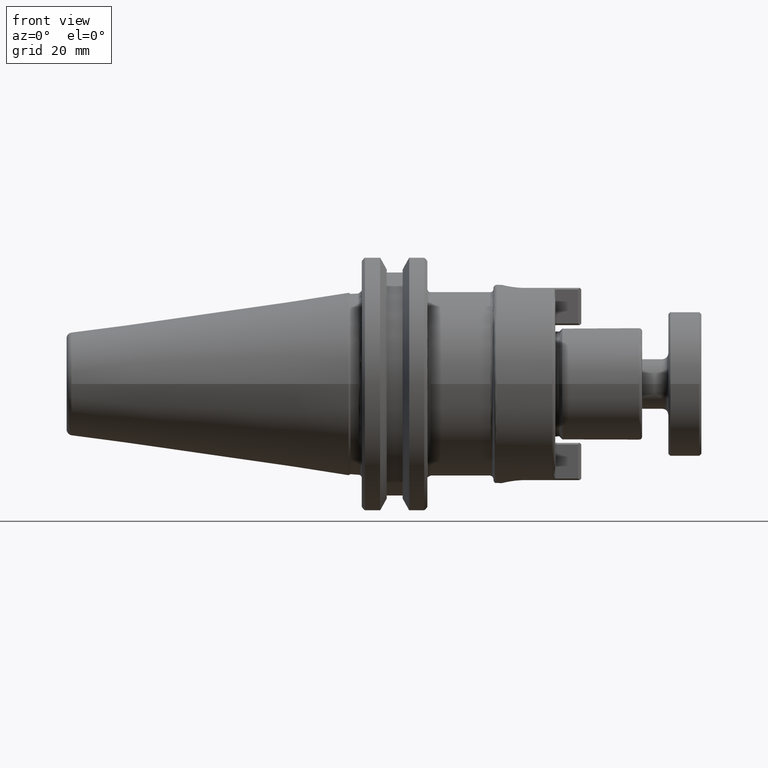
[diagram: clean part render]
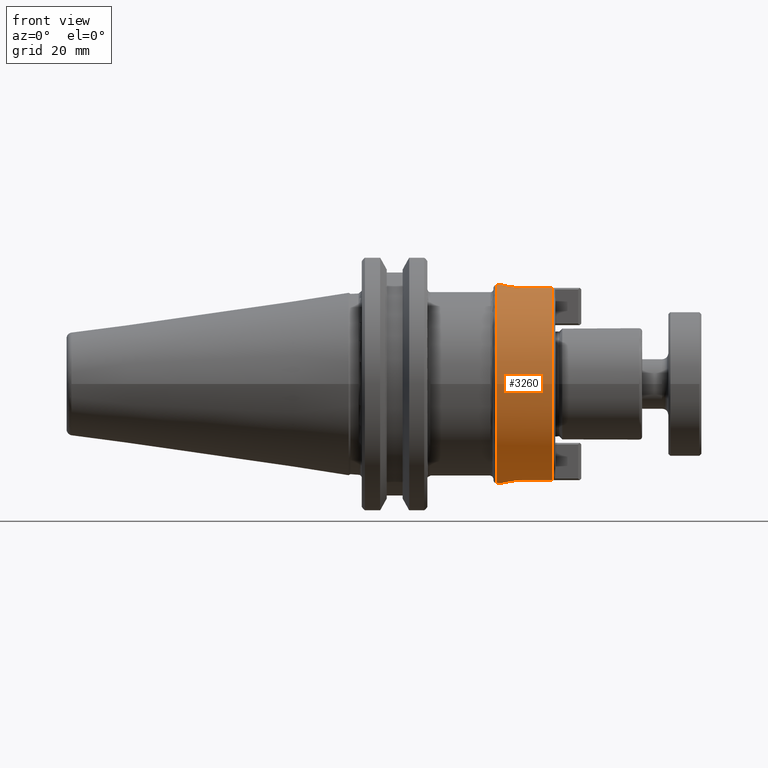
[diagram: same view with one face highlighted and labeled with its STEP entity id]
A machine part, front view. The second image highlights one B-rep face of the part: STEP entity #3260.
In plain terms, the highlighted cylindrical surface (bore or boss wall) has radius 24 mm, axis along (1, 0, 0).
Its self-contained STEP definition (entity closure, byte-faithful):
#123=B_SPLINE_CURVE_WITH_KNOTS('',3,(#5011,#5012,#5013,#5014,#5015,#5016,
#5017,#5018,#5019,#5020,#5021,#5022,#5023,#5024,#5025,#5026,#5027,#5028),
 .UNSPECIFIED.,.F.,.F.,(4,2,2,2,2,2,2,2,4),(0.,0.226854945168056,0.453709890336111,
0.680533238990156,0.9073565876442,1.13417993629825,1.36100328495229,1.58785823012035,
1.8147131752884),.UNSPECIFIED.);
#126=B_SPLINE_CURVE_WITH_KNOTS('',3,(#5095,#5096,#5097,#5098,#5099,#5100,
#5101,#5102,#5103,#5104,#5105,#5106,#5107,#5108,#5109,#5110,#5111,#5112),
 .UNSPECIFIED.,.F.,.F.,(4,2,2,2,2,2,2,2,4),(0.,0.226854945168056,0.453709890336111,
0.680533238990156,0.9073565876442,1.13417993629825,1.36100328495229,1.58785823012035,
1.8147131752884),.UNSPECIFIED.);
#288=CYLINDRICAL_SURFACE('',#3612,0.94488188976378);
#470=FACE_OUTER_BOUND('',#656,.T.);
#656=EDGE_LOOP('',(#2386,#2387,#2388,#2389,#2390,#2391,#2392,#2393,#2394,
#2395,#2396,#2397,#2398));
#863=LINE('',#5036,#1089);
#866=LINE('',#5053,#1092);
#872=LINE('',#5086,#1098);
#873=LINE('',#5093,#1099);
#874=LINE('',#5114,#1100);
#1089=VECTOR('',#4055,0.393700787401575);
#1092=VECTOR('',#4060,0.393700787401575);
#1098=VECTOR('',#4072,0.94488188976378);
#1099=VECTOR('',#4079,0.393700787401575);
#1100=VECTOR('',#4080,0.393700787401575);
#1335=CIRCLE('',#3613,0.94488188976378);
#1336=CIRCLE('',#3614,0.94488188976378);
#1337=CIRCLE('',#3615,0.94488188976378);
#1338=CIRCLE('',#3616,0.94488188976378);
#1339=CIRCLE('',#3617,0.94488188976378);
#1492=VERTEX_POINT('',#5009);
#1493=VERTEX_POINT('',#5010);
#1496=VERTEX_POINT('',#5035);
#1499=VERTEX_POINT('',#5052);
#1506=VERTEX_POINT('',#5083);
#1507=VERTEX_POINT('',#5085);
#1508=VERTEX_POINT('',#5087);
#1509=VERTEX_POINT('',#5090);
#1510=VERTEX_POINT('',#5092);
#1511=VERTEX_POINT('',#5094);
#1512=VERTEX_POINT('',#5113);
#1826=EDGE_CURVE('',#1492,#1493,#123,.T.);
#1830=EDGE_CURVE('',#1493,#1496,#863,.T.);
#1834=EDGE_CURVE('',#1499,#1492,#866,.T.);
#1843=EDGE_CURVE('',#1506,#1496,#1335,.T.);
#1844=EDGE_CURVE('',#1506,#1507,#872,.T.);
#1845=EDGE_CURVE('',#1508,#1507,#1336,.T.);
#1846=EDGE_CURVE('',#1507,#1508,#1337,.T.);
#1847=EDGE_CURVE('',#1509,#1506,#1338,.T.);
#1848=EDGE_CURVE('',#1509,#1510,#873,.T.);
#1849=EDGE_CURVE('',#1510,#1511,#126,.T.);
#1850=EDGE_CURVE('',#1511,#1512,#874,.T.);
#1851=EDGE_CURVE('',#1499,#1512,#1339,.T.);
#2386=ORIENTED_EDGE('',*,*,#1834,.T.);
#2387=ORIENTED_EDGE('',*,*,#1826,.T.);
#2388=ORIENTED_EDGE('',*,*,#1830,.T.);
#2389=ORIENTED_EDGE('',*,*,#1843,.F.);
#2390=ORIENTED_EDGE('',*,*,#1844,.T.);
#2391=ORIENTED_EDGE('',*,*,#1845,.F.);
#2392=ORIENTED_EDGE('',*,*,#1846,.F.);
#2393=ORIENTED_EDGE('',*,*,#1844,.F.);
#2394=ORIENTED_EDGE('',*,*,#1847,.F.);
#2395=ORIENTED_EDGE('',*,*,#1848,.T.);
#2396=ORIENTED_EDGE('',*,*,#1849,.T.);
#2397=ORIENTED_EDGE('',*,*,#1850,.T.);
#2398=ORIENTED_EDGE('',*,*,#1851,.F.);
#3260=ADVANCED_FACE('',(#470),#288,.T.);
#3612=AXIS2_PLACEMENT_3D('',#5082,#4068,#4069);
#3613=AXIS2_PLACEMENT_3D('',#5084,#4070,#4071);
#3614=AXIS2_PLACEMENT_3D('',#5088,#4073,#4074);
#3615=AXIS2_PLACEMENT_3D('',#5089,#4075,#4076);
#3616=AXIS2_PLACEMENT_3D('',#5091,#4077,#4078);
#3617=AXIS2_PLACEMENT_3D('',#5115,#4081,#4082);
#4055=DIRECTION('',(1.,1.81410118788055E-16,0.));
#4060=DIRECTION('',(-1.,-1.81410118788055E-16,0.));
#4068=DIRECTION('center_axis',(1.,1.81410118788055E-16,0.));
#4069=DIRECTION('ref_axis',(0.,1.,0.));
#4070=DIRECTION('center_axis',(1.,1.81410118788055E-16,0.));
#4071=DIRECTION('ref_axis',(1.7925475918427E-16,-1.,1.22464679914735E-16));
#4072=DIRECTION('',(-1.,-1.81410118788055E-16,0.));
#4073=DIRECTION('center_axis',(-1.,-1.81410118788055E-16,0.));
#4074=DIRECTION('ref_axis',(1.7925475918427E-16,-1.,1.22464679914735E-16));
#4075=DIRECTION('center_axis',(-1.,-1.81410118788055E-16,0.));
#4076=DIRECTION('ref_axis',(1.7925475918427E-16,-1.,1.22464679914735E-16));
#4077=DIRECTION('center_axis',(1.,1.81410118788055E-16,0.));
#4078=DIRECTION('ref_axis',(1.7925475918427E-16,-1.,1.22464679914735E-16));
#4079=DIRECTION('',(-1.,-1.81410118788055E-16,0.));
#4080=DIRECTION('',(1.,1.81410118788055E-16,0.));
#4081=DIRECTION('center_axis',(1.,1.81410118788055E-16,0.));
#4082=DIRECTION('ref_axis',(1.7925475918427E-16,-1.,1.22464679914735E-16));
#5009=CARTESIAN_POINT('',(1.69250393700787,0.236,-0.914934853201894));
#5010=CARTESIAN_POINT('',(1.69250393700787,-0.236,-0.914934853201894));
#5011=CARTESIAN_POINT('Ctrl Pts',(1.69250393700787,0.236,-0.914934853201894));
#5012=CARTESIAN_POINT('Ctrl Pts',(1.66273294682834,0.236,-0.914934853201894));
#5013=CARTESIAN_POINT('Ctrl Pts',(1.63106838979138,0.230024360545491,-0.916539269977927));
#5014=CARTESIAN_POINT('Ctrl Pts',(1.57296298855183,0.205901674481201,-0.922258063716089));
#5015=CARTESIAN_POINT('Ctrl Pts',(1.54651058302253,0.187761046734703,-0.926281680564572));
#5016=CARTESIAN_POINT('Ctrl Pts',(1.50474579898977,0.145996262701946,-0.933775630601035));
#5017=CARTESIAN_POINT('Ctrl Pts',(1.48660290328955,0.119542645616682,-0.937743749405719));
#5018=CARTESIAN_POINT('Ctrl Pts',(1.46247856153507,0.0614329487868918,-0.943334392683162));
#5019=CARTESIAN_POINT('Ctrl Pts',(1.45650393700787,0.0297668436553863,-0.94488188976378));
#5020=CARTESIAN_POINT('Ctrl Pts',(1.45650393700787,-0.0297668436553865,
-0.94488188976378));
#5021=CARTESIAN_POINT('Ctrl Pts',(1.46247856153507,-0.061432948786892,-0.943334392683163));
#5022=CARTESIAN_POINT('Ctrl Pts',(1.48660290328955,-0.119542645616682,-0.93774374940572));
#5023=CARTESIAN_POINT('Ctrl Pts',(1.50474579898977,-0.145996262701946,-0.933775630601035));
#5024=CARTESIAN_POINT('Ctrl Pts',(1.54651058302253,-0.187761046734703,-0.926281680564572));
#5025=CARTESIAN_POINT('Ctrl Pts',(1.57296298855183,-0.205901674481201,-0.922258063716089));
#5026=CARTESIAN_POINT('Ctrl Pts',(1.63106838979138,-0.230024360545491,-0.916539269977927));
#5027=CARTESIAN_POINT('Ctrl Pts',(1.66273294682834,-0.236,-0.914934853201894));
#5028=CARTESIAN_POINT('Ctrl Pts',(1.69250393700787,-0.236,-0.914934853201894));
#5035=CARTESIAN_POINT('',(1.93850393700787,-0.236,-0.914934853201894));
#5036=CARTESIAN_POINT('',(1.67425196850394,-0.236,-0.914934853201894));
#5052=CARTESIAN_POINT('',(1.93850393700787,0.236,-0.914934853201894));
#5053=CARTESIAN_POINT('',(1.67425196850394,0.236,-0.914934853201894));
#5082=CARTESIAN_POINT('Origin',(1.67425196850394,-1.1594589264255E-16,0.));
#5083=CARTESIAN_POINT('',(1.93850393700787,-0.94488188976378,-1.15714658187152E-16));
#5084=CARTESIAN_POINT('Origin',(1.93850393700787,-6.80079116462732E-17,
0.));
#5085=CARTESIAN_POINT('',(1.41,-0.94488188976378,-1.15714658187152E-16));
#5086=CARTESIAN_POINT('',(1.67425196850394,-0.94488188976378,-1.15714658187152E-16));
#5087=CARTESIAN_POINT('',(1.41,-2.79598531825978E-16,0.94488188976378));
#5088=CARTESIAN_POINT('Origin',(1.41,-1.63883873638826E-16,0.));
#5089=CARTESIAN_POINT('Origin',(1.41,-1.63883873638826E-16,0.));
#5090=CARTESIAN_POINT('',(1.93850393700787,-0.236,0.914934853201894));
#5091=CARTESIAN_POINT('Origin',(1.93850393700787,-6.80079116462732E-17,
0.));
#5092=CARTESIAN_POINT('',(1.69250393700787,-0.236,0.914934853201894));
#5093=CARTESIAN_POINT('',(1.67425196850394,-0.236,0.914934853201894));
#5094=CARTESIAN_POINT('',(1.69250393700787,0.236,0.914934853201894));
#5095=CARTESIAN_POINT('Ctrl Pts',(1.69250393700787,-0.236,0.914934853201894));
#5096=CARTESIAN_POINT('Ctrl Pts',(1.66273294682834,-0.236,0.914934853201894));
#5097=CARTESIAN_POINT('Ctrl Pts',(1.63106838979138,-0.230024360545491,0.916539269977927));
#5098=CARTESIAN_POINT('Ctrl Pts',(1.57296298855183,-0.205901674481201,0.922258063716089));
#5099=CARTESIAN_POINT('Ctrl Pts',(1.54651058302253,-0.187761046734703,0.926281680564572));
#5100=CARTESIAN_POINT('Ctrl Pts',(1.50474579898977,-0.145996262701946,0.933775630601035));
#5101=CARTESIAN_POINT('Ctrl Pts',(1.48660290328955,-0.119542645616682,0.93774374940572));
#5102=CARTESIAN_POINT('Ctrl Pts',(1.46247856153507,-0.0614329487868919,
0.943334392683163));
#5103=CARTESIAN_POINT('Ctrl Pts',(1.45650393700787,-0.0297668436553864,
0.94488188976378));
#5104=CARTESIAN_POINT('Ctrl Pts',(1.45650393700787,0.0297668436553865,0.94488188976378));
#5105=CARTESIAN_POINT('Ctrl Pts',(1.46247856153507,0.0614329487868919,0.943334392683162));
#5106=CARTESIAN_POINT('Ctrl Pts',(1.48660290328955,0.119542645616682,0.937743749405719));
#5107=CARTESIAN_POINT('Ctrl Pts',(1.50474579898977,0.145996262701946,0.933775630601035));
#5108=CARTESIAN_POINT('Ctrl Pts',(1.54651058302253,0.187761046734703,0.926281680564572));
#5109=CARTESIAN_POINT('Ctrl Pts',(1.57296298855183,0.205901674481201,0.922258063716089));
#5110=CARTESIAN_POINT('Ctrl Pts',(1.63106838979138,0.230024360545491,0.916539269977927));
#5111=CARTESIAN_POINT('Ctrl Pts',(1.66273294682834,0.236,0.914934853201894));
#5112=CARTESIAN_POINT('Ctrl Pts',(1.69250393700787,0.236,0.914934853201894));
#5113=CARTESIAN_POINT('',(1.93850393700787,0.236,0.914934853201894));
#5114=CARTESIAN_POINT('',(1.67425196850394,0.236,0.914934853201894));
#5115=CARTESIAN_POINT('Origin',(1.93850393700787,-6.80079116462732E-17,
0.));